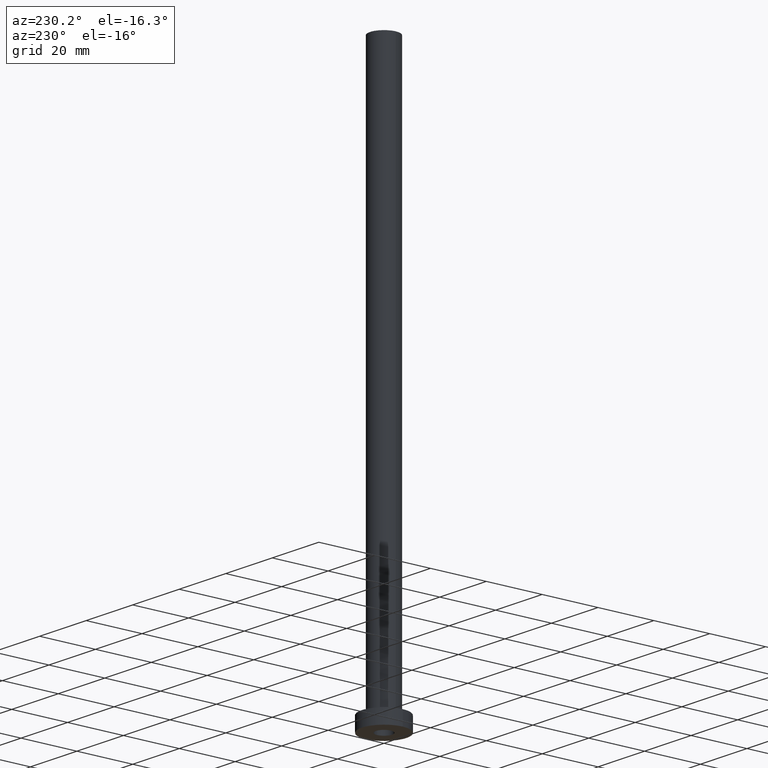
[diagram: clean part render]
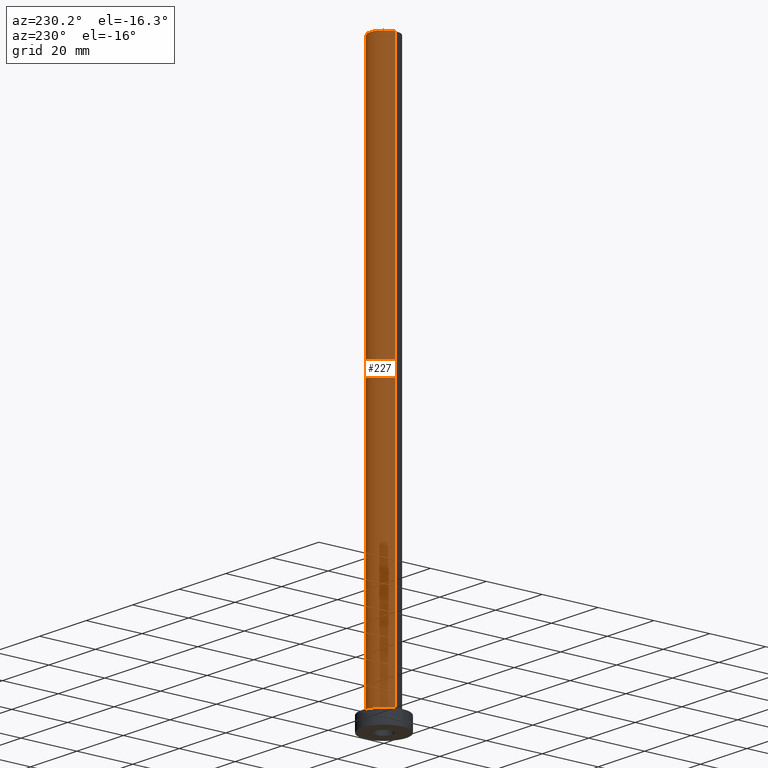
[diagram: same view with one face highlighted and labeled with its STEP entity id]
A machine part, auxiliary view. The second image highlights one B-rep face of the part: STEP entity #227.
In plain terms, the highlighted cylindrical surface (edge-blend (fillet) strip) has radius 5 mm, axis along (-0, -0, -1).
Its self-contained STEP definition (entity closure, byte-faithful):
#33 = VERTEX_POINT ( 'NONE', #127 ) ;
#34 = EDGE_CURVE ( 'NONE', #154, #33, #101, .T. ) ;
#35 = CARTESIAN_POINT ( 'NONE',  ( 0.000000000000000000, 0.000000000000000000, 200.0000000000000000 ) ) ;
#67 = LINE ( 'NONE', #346, #421 ) ;
#86 = AXIS2_PLACEMENT_3D ( 'NONE', #331, #259, #257 ) ;
#101 = LINE ( 'NONE', #300, #265 ) ;
#114 = DIRECTION ( 'NONE',  ( -1.000000000000000000, 0.000000000000000000, 0.000000000000000000 ) ) ;
#123 = ORIENTED_EDGE ( 'NONE', *, *, #147, .F. ) ;
#127 = CARTESIAN_POINT ( 'NONE',  ( -5.000000000000000000, 0.000000000000000000, 5.500000000000005329 ) ) ;
#130 = DIRECTION ( 'NONE',  ( -0.000000000000000000, -0.000000000000000000, -1.000000000000000000 ) ) ;
#146 = CIRCLE ( 'NONE', #313, 5.000000000000000000 ) ;
#147 = EDGE_CURVE ( 'NONE', #457, #154, #146, .T. ) ;
#154 = VERTEX_POINT ( 'NONE', #261 ) ;
#155 = EDGE_CURVE ( 'NONE', #179, #33, #405, .T. ) ;
#179 = VERTEX_POINT ( 'NONE', #404 ) ;
#180 = CARTESIAN_POINT ( 'NONE',  ( 0.000000000000000000, 0.000000000000000000, 200.0000000000000000 ) ) ;
#181 = CARTESIAN_POINT ( 'NONE',  ( 5.000000000000000000, 6.123233995736766282E-16, 200.0000000000000000 ) ) ;
#182 = ORIENTED_EDGE ( 'NONE', *, *, #155, .T. ) ;
#187 = FACE_OUTER_BOUND ( 'NONE', #256, .T. ) ;
#223 = ORIENTED_EDGE ( 'NONE', *, *, #425, .T. ) ;
#227 = ADVANCED_FACE ( 'NONE', ( #187 ), #327, .T. ) ;
#243 = DIRECTION ( 'NONE',  ( -0.000000000000000000, -0.000000000000000000, -1.000000000000000000 ) ) ;
#256 = EDGE_LOOP ( 'NONE', ( #123, #223, #182, #435 ) ) ;
#257 = DIRECTION ( 'NONE',  ( 1.000000000000000000, 0.000000000000000000, 0.000000000000000000 ) ) ;
#259 = DIRECTION ( 'NONE',  ( 0.000000000000000000, 0.000000000000000000, 1.000000000000000000 ) ) ;
#261 = CARTESIAN_POINT ( 'NONE',  ( -5.000000000000000000, 0.000000000000000000, 200.0000000000000000 ) ) ;
#265 = VECTOR ( 'NONE', #130, 1000.000000000000000 ) ;
#283 = DIRECTION ( 'NONE',  ( -0.000000000000000000, -0.000000000000000000, -1.000000000000000000 ) ) ;
#294 = DIRECTION ( 'NONE',  ( 1.000000000000000000, 0.000000000000000000, 0.000000000000000000 ) ) ;
#300 = CARTESIAN_POINT ( 'NONE',  ( -5.000000000000000000, 0.000000000000000000, 200.0000000000000000 ) ) ;
#313 = AXIS2_PLACEMENT_3D ( 'NONE', #180, #460, #294 ) ;
#322 = AXIS2_PLACEMENT_3D ( 'NONE', #35, #283, #114 ) ;
#327 = CYLINDRICAL_SURFACE ( 'NONE', #322, 5.000000000000000000 ) ;
#331 = CARTESIAN_POINT ( 'NONE',  ( 0.000000000000000000, 0.000000000000000000, 5.500000000000005329 ) ) ;
#346 = CARTESIAN_POINT ( 'NONE',  ( 5.000000000000000000, 6.123233995736766282E-16, 200.0000000000000000 ) ) ;
#404 = CARTESIAN_POINT ( 'NONE',  ( 5.000000000000000000, 6.123233995736766282E-16, 5.500000000000005329 ) ) ;
#405 = CIRCLE ( 'NONE', #86, 5.000000000000000000 ) ;
#421 = VECTOR ( 'NONE', #243, 1000.000000000000000 ) ;
#425 = EDGE_CURVE ( 'NONE', #457, #179, #67, .T. ) ;
#435 = ORIENTED_EDGE ( 'NONE', *, *, #34, .F. ) ;
#457 = VERTEX_POINT ( 'NONE', #181 ) ;
#460 = DIRECTION ( 'NONE',  ( 0.000000000000000000, 0.000000000000000000, 1.000000000000000000 ) ) ;